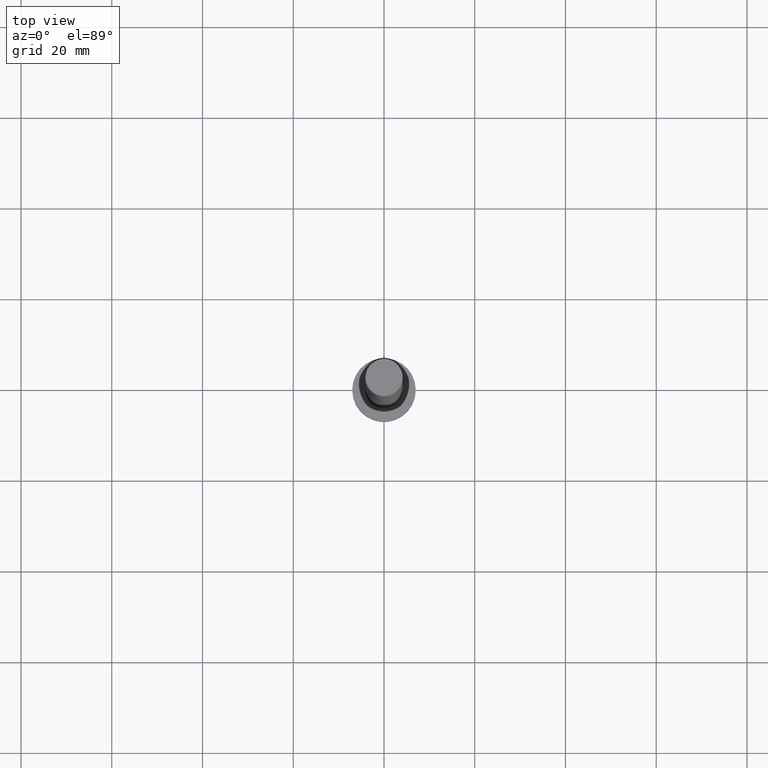
[diagram: clean part render]
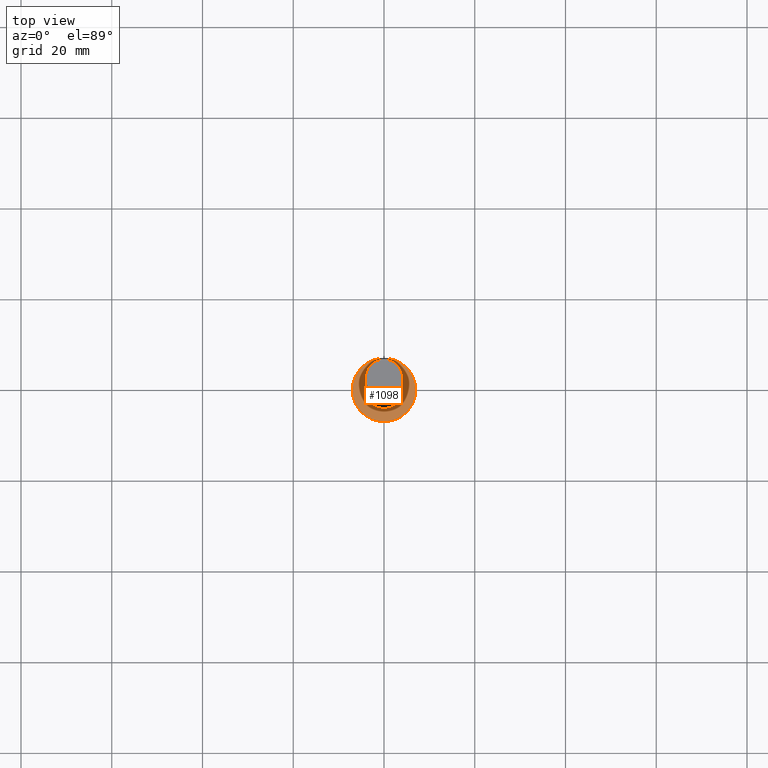
[diagram: same view with one face highlighted and labeled with its STEP entity id]
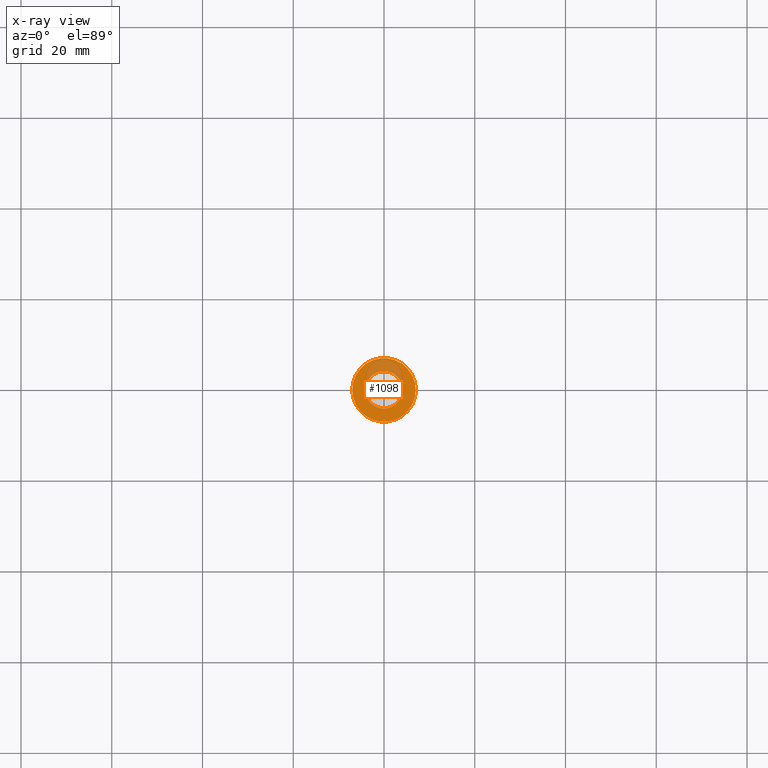
[diagram: x-ray of the same camera — body ghosted, the highlighted face saturated]
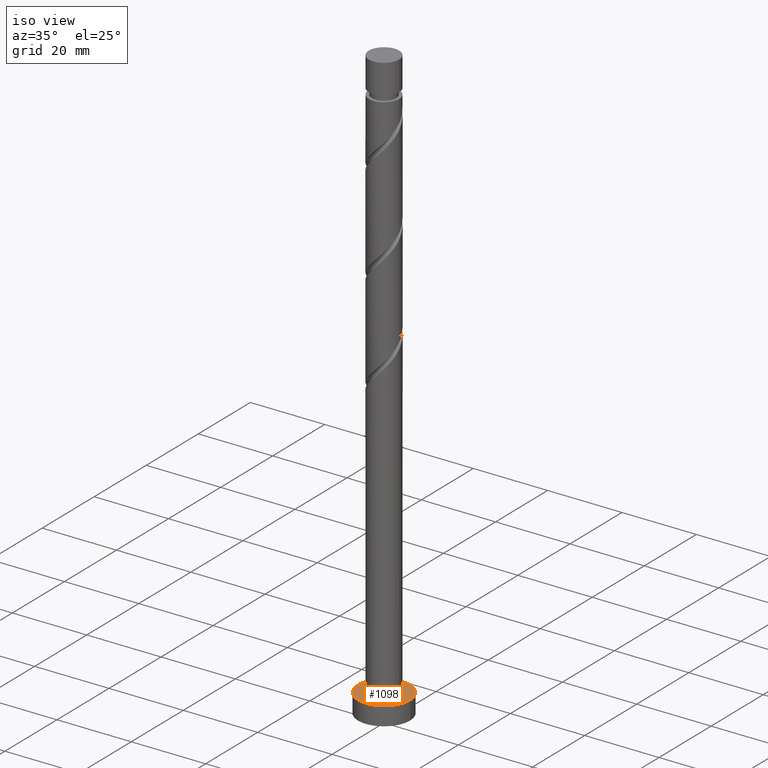
[diagram: same view with one face highlighted and labeled with its STEP entity id]
A machine part, top view. The second image highlights one B-rep face of the part: STEP entity #1098.
The next image is the same camera in x-ray: the body ghosted, the highlighted face saturated — about 22% of this face is hidden behind the body in this view.
A second angle (iso view) of the same face is appended — the face is thin or edge-on in the first view.
In plain terms, the highlighted planar face has unit normal (0, 0, 1).
Its self-contained STEP definition (entity closure, byte-faithful):
#22 = CARTESIAN_POINT ( 'NONE',  ( 0.000000000000000000, 0.000000000000000000, 5.000000000000000000 ) ) ;
#36 = EDGE_CURVE ( 'NONE', #504, #76, #1440, .T. ) ;
#65 = CARTESIAN_POINT ( 'NONE',  ( 0.000000000000000000, 0.000000000000000000, 5.000000000000000000 ) ) ;
#76 = VERTEX_POINT ( 'NONE', #1046 ) ;
#162 = VERTEX_POINT ( 'NONE', #845 ) ;
#206 = CIRCLE ( 'NONE', #870, 4.099999999999999645 ) ;
#403 = DIRECTION ( 'NONE',  ( 0.000000000000000000, 0.000000000000000000, 1.000000000000000000 ) ) ;
#412 = CIRCLE ( 'NONE', #1352, 4.099999999999999645 ) ;
#419 = CARTESIAN_POINT ( 'NONE',  ( 0.000000000000000000, 0.000000000000000000, 5.000000000000000000 ) ) ;
#458 = CARTESIAN_POINT ( 'NONE',  ( 4.099999999999999645, 5.021051876504147385E-16, 5.000000000000000000 ) ) ;
#504 = VERTEX_POINT ( 'NONE', #1193 ) ;
#567 = ORIENTED_EDGE ( 'NONE', *, *, #36, .T. ) ;
#579 = DIRECTION ( 'NONE',  ( 0.000000000000000000, 0.000000000000000000, 1.000000000000000000 ) ) ;
#637 = DIRECTION ( 'NONE',  ( 0.000000000000000000, 0.000000000000000000, 1.000000000000000000 ) ) ;
#646 = CARTESIAN_POINT ( 'NONE',  ( 0.000000000000000000, 0.000000000000000000, 5.000000000000000000 ) ) ;
#685 = EDGE_CURVE ( 'NONE', #162, #1028, #412, .T. ) ;
#728 = CARTESIAN_POINT ( 'NONE',  ( 0.000000000000000000, 0.000000000000000000, 5.000000000000000000 ) ) ;
#761 = CIRCLE ( 'NONE', #1386, 7.000000000000000000 ) ;
#812 = ORIENTED_EDGE ( 'NONE', *, *, #1572, .F. ) ;
#814 = AXIS2_PLACEMENT_3D ( 'NONE', #65, #579, #1082 ) ;
#824 = FACE_OUTER_BOUND ( 'NONE', #1099, .T. ) ;
#845 = CARTESIAN_POINT ( 'NONE',  ( -4.099999999999999645, 0.000000000000000000, 5.000000000000000000 ) ) ;
#870 = AXIS2_PLACEMENT_3D ( 'NONE', #646, #637, #1163 ) ;
#899 = ORIENTED_EDGE ( 'NONE', *, *, #685, .F. ) ;
#931 = DIRECTION ( 'NONE',  ( 1.000000000000000000, 0.000000000000000000, 0.000000000000000000 ) ) ;
#941 = PLANE ( 'NONE',  #814 ) ;
#990 = DIRECTION ( 'NONE',  ( 0.000000000000000000, 0.000000000000000000, 1.000000000000000000 ) ) ;
#1028 = VERTEX_POINT ( 'NONE', #458 ) ;
#1046 = CARTESIAN_POINT ( 'NONE',  ( 7.000000000000000000, 8.572527594031473190E-16, 5.000000000000000000 ) ) ;
#1053 = AXIS2_PLACEMENT_3D ( 'NONE', #419, #1448, #931 ) ;
#1082 = DIRECTION ( 'NONE',  ( 1.000000000000000000, 0.000000000000000000, -0.000000000000000000 ) ) ;
#1098 = ADVANCED_FACE ( 'NONE', ( #1451, #824 ), #941, .T. ) ;
#1099 = EDGE_LOOP ( 'NONE', ( #567, #1422 ) ) ;
#1117 = DIRECTION ( 'NONE',  ( 1.000000000000000000, 0.000000000000000000, 0.000000000000000000 ) ) ;
#1144 = DIRECTION ( 'NONE',  ( 1.000000000000000000, 0.000000000000000000, 0.000000000000000000 ) ) ;
#1163 = DIRECTION ( 'NONE',  ( 1.000000000000000000, 0.000000000000000000, 0.000000000000000000 ) ) ;
#1193 = CARTESIAN_POINT ( 'NONE',  ( -7.000000000000000000, 0.000000000000000000, 5.000000000000000000 ) ) ;
#1209 = EDGE_LOOP ( 'NONE', ( #899, #812 ) ) ;
#1352 = AXIS2_PLACEMENT_3D ( 'NONE', #728, #990, #1117 ) ;
#1386 = AXIS2_PLACEMENT_3D ( 'NONE', #22, #403, #1144 ) ;
#1422 = ORIENTED_EDGE ( 'NONE', *, *, #1581, .T. ) ;
#1440 = CIRCLE ( 'NONE', #1053, 7.000000000000000000 ) ;
#1448 = DIRECTION ( 'NONE',  ( 0.000000000000000000, 0.000000000000000000, 1.000000000000000000 ) ) ;
#1451 = FACE_BOUND ( 'NONE', #1209, .T. ) ;
#1572 = EDGE_CURVE ( 'NONE', #1028, #162, #206, .T. ) ;
#1581 = EDGE_CURVE ( 'NONE', #76, #504, #761, .T. ) ;